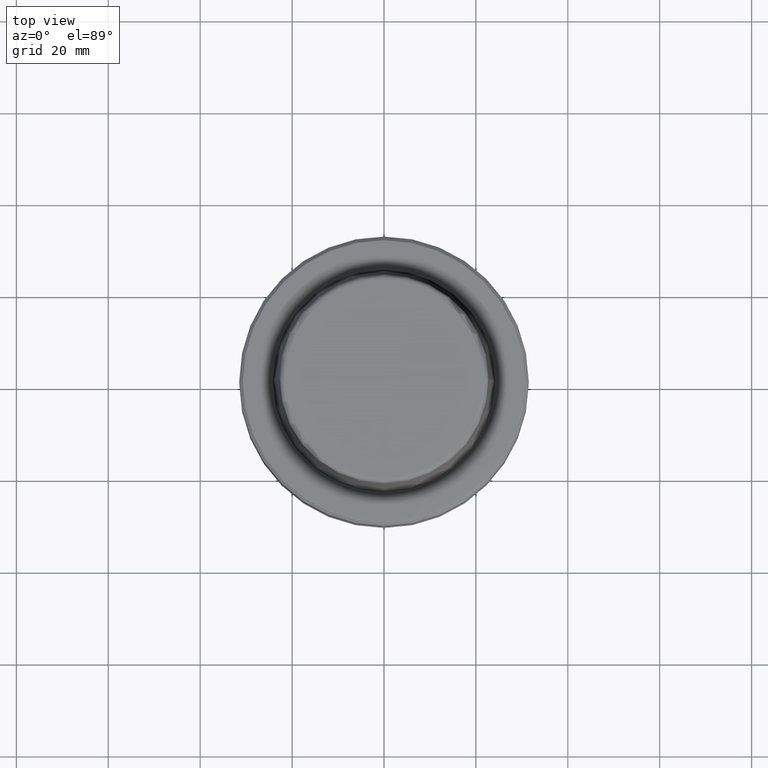
[diagram: clean part render]
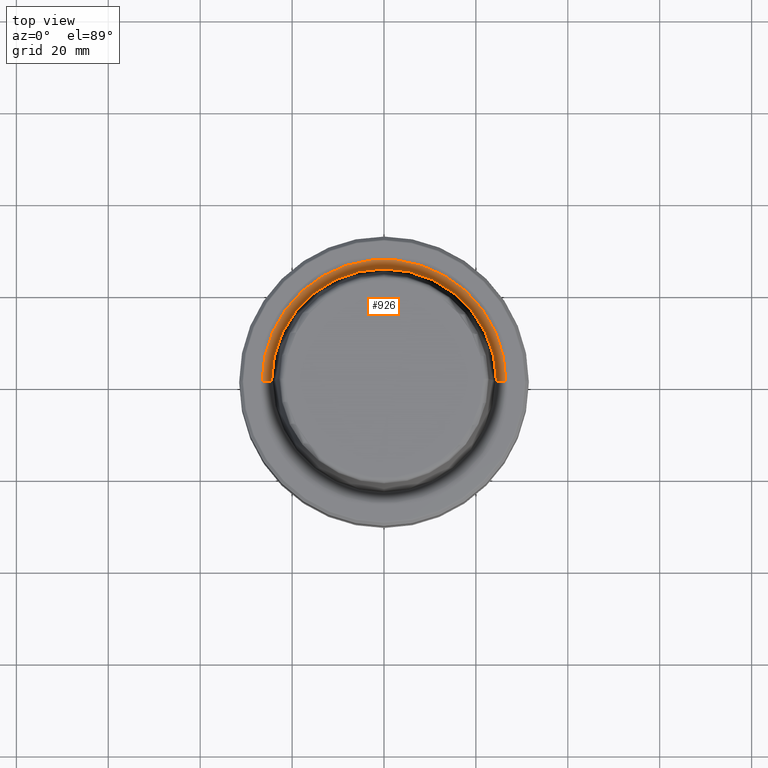
[diagram: same view with one face highlighted and labeled with its STEP entity id]
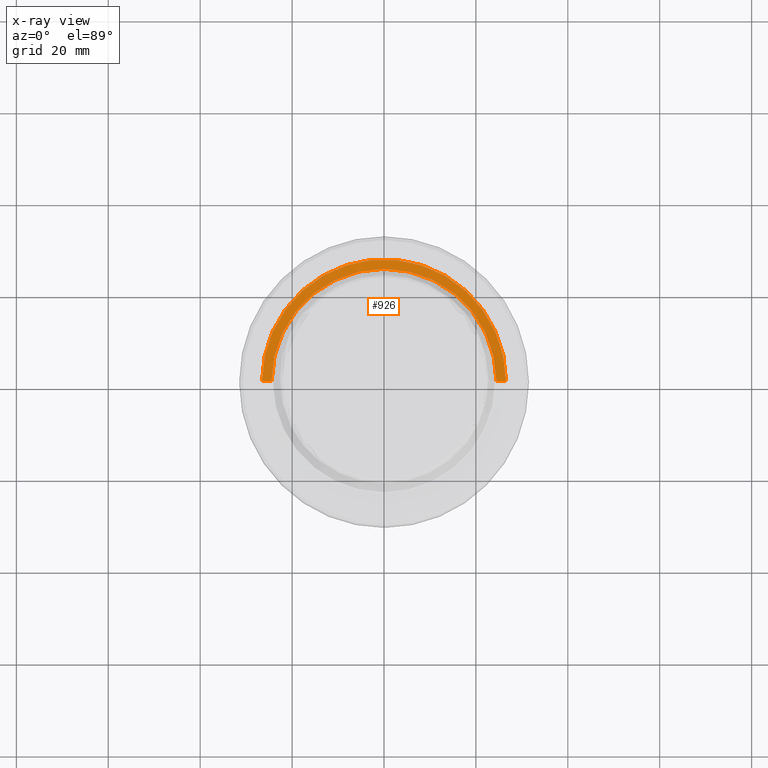
[diagram: x-ray of the same camera — body ghosted, the highlighted face saturated]
A machine part, top view. The second image highlights one B-rep face of the part: STEP entity #926.
The next image is the same camera in x-ray: the body ghosted, the highlighted face saturated — about 0% of this face is hidden behind the body in this view.
In plain terms, the highlighted conical surface has half-angle 80 deg.
Its self-contained STEP definition (entity closure, byte-faithful):
#5 = CARTESIAN_POINT ( 'NONE',  ( -26.52499999999999900, 3.248375634738354300E-015, 0.0000000000000000000 ) ) ;
#29 = CARTESIAN_POINT ( 'NONE',  ( 0.0000000000000000000, 0.0000000000000000000, 0.0000000000000000000 ) ) ;
#93 = DIRECTION ( 'NONE',  ( 1.000000000000000000, 0.0000000000000000000, 0.0000000000000000000 ) ) ;
#95 = CIRCLE ( 'NONE', #397, 26.52499999999999900 ) ;
#98 = CONICAL_SURFACE ( 'NONE', #315, 26.52499999999999900, 1.396263401595460500 ) ;
#179 = EDGE_CURVE ( 'NONE', #535, #1136, #629, .T. ) ;
#213 = CARTESIAN_POINT ( 'NONE',  ( 24.47682408883346700, 0.0000000000000000000, -0.3611486743758107700 ) ) ;
#221 = LINE ( 'NONE', #283, #960 ) ;
#232 = EDGE_CURVE ( 'NONE', #1136, #412, #95, .T. ) ;
#234 = CIRCLE ( 'NONE', #286, 24.47682408883346700 ) ;
#249 = CARTESIAN_POINT ( 'NONE',  ( 26.52499999999999900, 0.0000000000000000000, 0.0000000000000000000 ) ) ;
#283 = CARTESIAN_POINT ( 'NONE',  ( -26.52499999999999900, 3.248375634738354300E-015, 0.0000000000000000000 ) ) ;
#286 = AXIS2_PLACEMENT_3D ( 'NONE', #340, #1013, #707 ) ;
#291 = ORIENTED_EDGE ( 'NONE', *, *, #874, .F. ) ;
#315 = AXIS2_PLACEMENT_3D ( 'NONE', #916, #1037, #619 ) ;
#340 = CARTESIAN_POINT ( 'NONE',  ( 0.0000000000000000000, 0.0000000000000000000, -0.3611486743758107700 ) ) ;
#373 = EDGE_CURVE ( 'NONE', #535, #1172, #234, .T. ) ;
#382 = FACE_OUTER_BOUND ( 'NONE', #398, .T. ) ;
#397 = AXIS2_PLACEMENT_3D ( 'NONE', #29, #503, #93 ) ;
#398 = EDGE_LOOP ( 'NONE', ( #291, #562, #772, #869 ) ) ;
#412 = VERTEX_POINT ( 'NONE', #5 ) ;
#503 = DIRECTION ( 'NONE',  ( -0.0000000000000000000, -0.0000000000000000000, 1.000000000000000000 ) ) ;
#535 = VERTEX_POINT ( 'NONE', #213 ) ;
#562 = ORIENTED_EDGE ( 'NONE', *, *, #373, .F. ) ;
#619 = DIRECTION ( 'NONE',  ( 1.000000000000000000, 0.0000000000000000000, 0.0000000000000000000 ) ) ;
#629 = LINE ( 'NONE', #249, #865 ) ;
#707 = DIRECTION ( 'NONE',  ( 1.000000000000000000, 0.0000000000000000000, 0.0000000000000000000 ) ) ;
#735 = DIRECTION ( 'NONE',  ( 0.9848077530122074700, 0.0000000000000000000, 0.1736481776669334700 ) ) ;
#736 = CARTESIAN_POINT ( 'NONE',  ( -24.47682408883346700, 3.122961031053313900E-015, -0.3611486743758107700 ) ) ;
#772 = ORIENTED_EDGE ( 'NONE', *, *, #179, .T. ) ;
#865 = VECTOR ( 'NONE', #735, 1000.000000000000200 ) ;
#869 = ORIENTED_EDGE ( 'NONE', *, *, #232, .T. ) ;
#874 = EDGE_CURVE ( 'NONE', #1172, #412, #221, .T. ) ;
#916 = CARTESIAN_POINT ( 'NONE',  ( 0.0000000000000000000, 0.0000000000000000000, 0.0000000000000000000 ) ) ;
#926 = ADVANCED_FACE ( 'NONE', ( #382 ), #98, .F. ) ;
#960 = VECTOR ( 'NONE', #1178, 1000.000000000000200 ) ;
#1013 = DIRECTION ( 'NONE',  ( -0.0000000000000000000, -0.0000000000000000000, 1.000000000000000000 ) ) ;
#1037 = DIRECTION ( 'NONE',  ( -0.0000000000000000000, -0.0000000000000000000, 1.000000000000000000 ) ) ;
#1136 = VERTEX_POINT ( 'NONE', #1138 ) ;
#1138 = CARTESIAN_POINT ( 'NONE',  ( 26.52499999999999900, 0.0000000000000000000, 0.0000000000000000000 ) ) ;
#1172 = VERTEX_POINT ( 'NONE', #736 ) ;
#1178 = DIRECTION ( 'NONE',  ( -0.9848077530122074700, 1.206041662501897100E-016, 0.1736481776669334700 ) ) ;